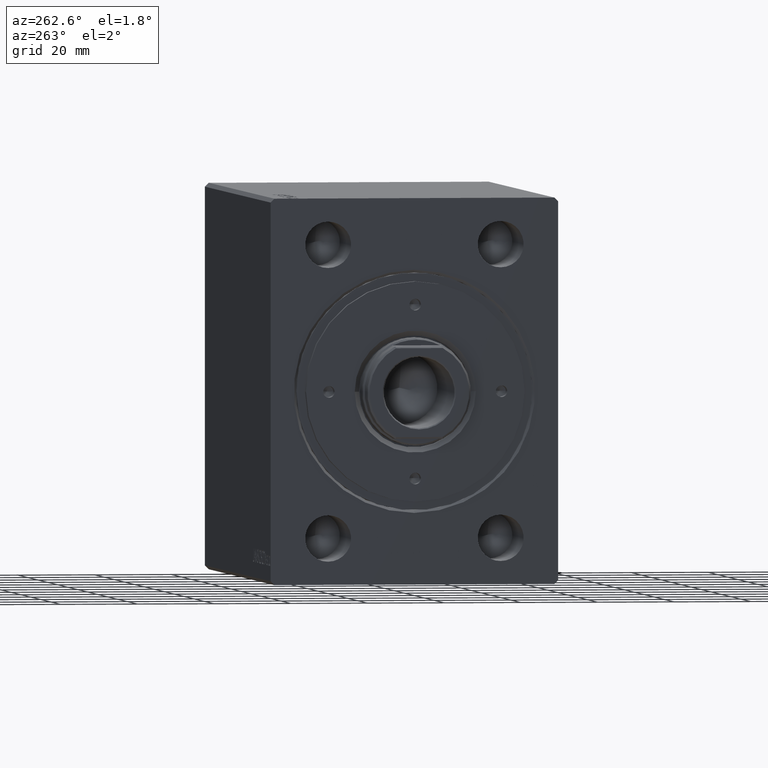
[diagram: clean part render]
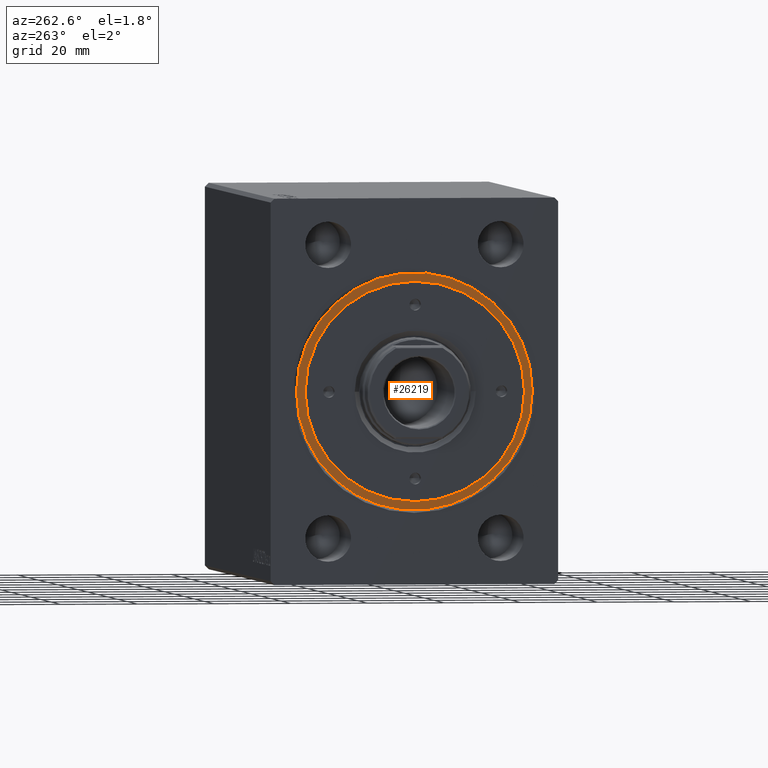
[diagram: same view with one face highlighted and labeled with its STEP entity id]
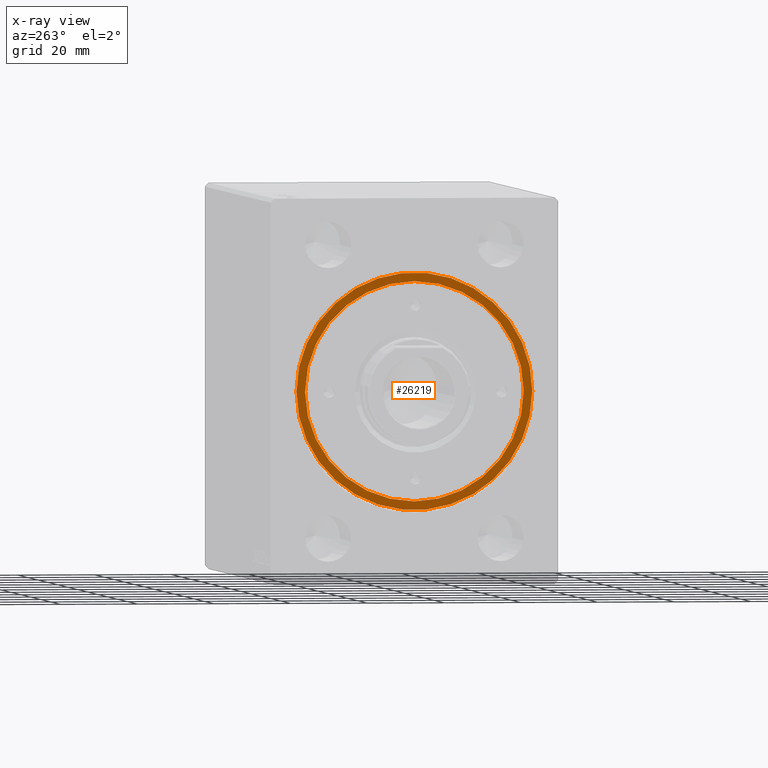
[diagram: x-ray of the same camera — body ghosted, the highlighted face saturated]
A machine part, auxiliary view. The second image highlights one B-rep face of the part: STEP entity #26219.
The next image is the same camera in x-ray: the body ghosted, the highlighted face saturated — about 0% of this face is hidden behind the body in this view.
In plain terms, the highlighted planar face has unit normal (-1, 0, 0).
Its self-contained STEP definition (entity closure, byte-faithful):
#1235 = VERTEX_POINT ( 'NONE', #12405 ) ;
#1257 = CARTESIAN_POINT ( 'NONE',  ( 0.000000000000000000, 0.000000000000000000, 8.199999999999999289 ) ) ;
#2526 = CIRCLE ( 'NONE', #38068, 30.75000000000000355 ) ;
#3252 = VERTEX_POINT ( 'NONE', #18152 ) ;
#3733 = FACE_BOUND ( 'NONE', #42807, .T. ) ;
#4413 = VERTEX_POINT ( 'NONE', #23657 ) ;
#5767 = ORIENTED_EDGE ( 'NONE', *, *, #11540, .F. ) ;
#7566 = CIRCLE ( 'NONE', #42350, 28.50000000000000000 ) ;
#8199 = CARTESIAN_POINT ( 'NONE',  ( 0.000000000000000000, 0.000000000000000000, 8.199999999999999289 ) ) ;
#10846 = DIRECTION ( 'NONE',  ( 1.000000000000000000, 0.000000000000000000, 0.000000000000000000 ) ) ;
#10877 = DIRECTION ( 'NONE',  ( 0.000000000000000000, 0.000000000000000000, 1.000000000000000000 ) ) ;
#11525 = DIRECTION ( 'NONE',  ( 1.000000000000000000, 0.000000000000000000, 0.000000000000000000 ) ) ;
#11540 = EDGE_CURVE ( 'NONE', #1235, #3252, #40396, .T. ) ;
#12210 = ORIENTED_EDGE ( 'NONE', *, *, #41391, .F. ) ;
#12262 = ORIENTED_EDGE ( 'NONE', *, *, #40636, .T. ) ;
#12405 = CARTESIAN_POINT ( 'NONE',  ( 28.50000000000000000, 3.490243377569956456E-15, 8.199999999999999289 ) ) ;
#14172 = DIRECTION ( 'NONE',  ( 0.000000000000000000, 0.000000000000000000, 1.000000000000000000 ) ) ;
#14829 = DIRECTION ( 'NONE',  ( 0.000000000000000000, 0.000000000000000000, 1.000000000000000000 ) ) ;
#16967 = AXIS2_PLACEMENT_3D ( 'NONE', #8199, #10877, #11525 ) ;
#18152 = CARTESIAN_POINT ( 'NONE',  ( -28.50000000000000000, 0.000000000000000000, 8.199999999999999289 ) ) ;
#20518 = DIRECTION ( 'NONE',  ( 1.000000000000000000, 0.000000000000000000, 0.000000000000000000 ) ) ;
#20775 = AXIS2_PLACEMENT_3D ( 'NONE', #34530, #40321, #20518 ) ;
#20849 = CARTESIAN_POINT ( 'NONE',  ( 0.000000000000000000, 0.000000000000000000, 8.199999999999999289 ) ) ;
#23609 = AXIS2_PLACEMENT_3D ( 'NONE', #33368, #14172, #41301 ) ;
#23657 = CARTESIAN_POINT ( 'NONE',  ( 30.75000000000000355, 3.765788907378111328E-15, 8.199999999999999289 ) ) ;
#24624 = FACE_OUTER_BOUND ( 'NONE', #39392, .T. ) ;
#26219 = ADVANCED_FACE ( 'NONE', ( #3733, #24624 ), #40262, .T. ) ;
#26704 = EDGE_CURVE ( 'NONE', #4413, #33438, #41383, .T. ) ;
#33019 = CARTESIAN_POINT ( 'NONE',  ( -30.75000000000000355, 0.000000000000000000, 8.199999999999999289 ) ) ;
#33368 = CARTESIAN_POINT ( 'NONE',  ( 0.000000000000000000, 0.000000000000000000, 8.199999999999999289 ) ) ;
#33438 = VERTEX_POINT ( 'NONE', #33019 ) ;
#34530 = CARTESIAN_POINT ( 'NONE',  ( 0.000000000000000000, 0.000000000000000000, 8.199999999999999289 ) ) ;
#35518 = ORIENTED_EDGE ( 'NONE', *, *, #26704, .T. ) ;
#38068 = AXIS2_PLACEMENT_3D ( 'NONE', #1257, #14829, #41968 ) ;
#39392 = EDGE_LOOP ( 'NONE', ( #12262, #35518 ) ) ;
#40262 = PLANE ( 'NONE',  #23609 ) ;
#40321 = DIRECTION ( 'NONE',  ( 0.000000000000000000, 0.000000000000000000, 1.000000000000000000 ) ) ;
#40396 = CIRCLE ( 'NONE', #16967, 28.50000000000000000 ) ;
#40636 = EDGE_CURVE ( 'NONE', #33438, #4413, #2526, .T. ) ;
#41087 = DIRECTION ( 'NONE',  ( 0.000000000000000000, 0.000000000000000000, 1.000000000000000000 ) ) ;
#41301 = DIRECTION ( 'NONE',  ( 1.000000000000000000, 0.000000000000000000, -0.000000000000000000 ) ) ;
#41383 = CIRCLE ( 'NONE', #20775, 30.75000000000000355 ) ;
#41391 = EDGE_CURVE ( 'NONE', #3252, #1235, #7566, .T. ) ;
#41968 = DIRECTION ( 'NONE',  ( 1.000000000000000000, 0.000000000000000000, 0.000000000000000000 ) ) ;
#42350 = AXIS2_PLACEMENT_3D ( 'NONE', #20849, #41087, #10846 ) ;
#42807 = EDGE_LOOP ( 'NONE', ( #12210, #5767 ) ) ;